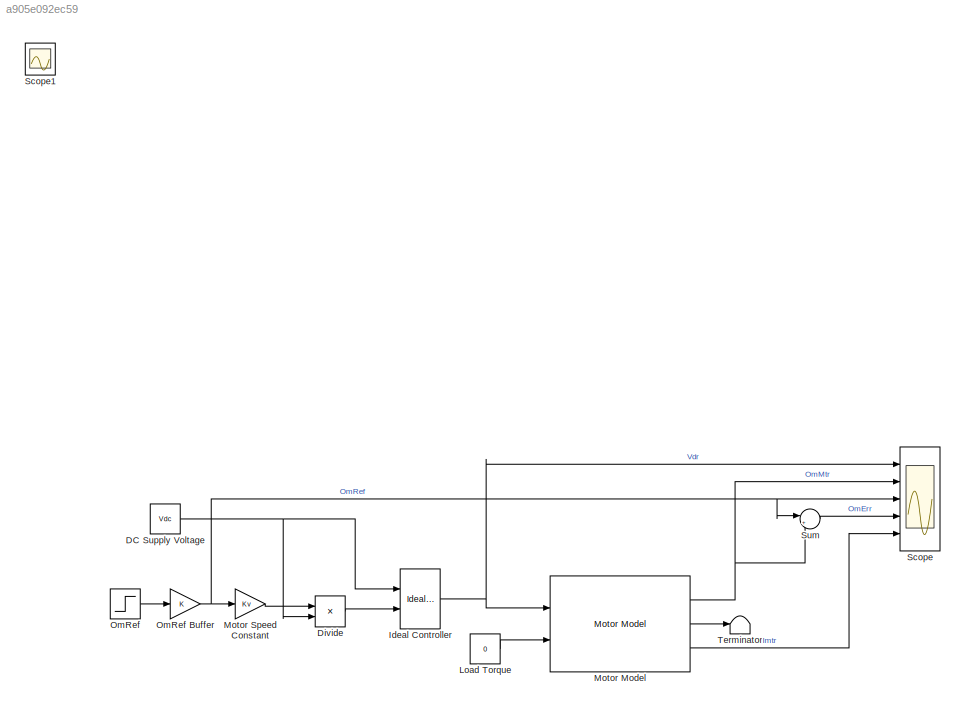
MODEL slx_a905e092ec59
KIND model
CONFIG AbsTol = auto
CONFIG FixedStep = auto
CONFIG MaxStep = auto
CONFIG MinStep = auto
CONFIG RelTol = 1e-3
CONFIG SampleTimeConstraint = Unconstrained
CONFIG Solver = VariableStepAuto
CONFIG SolverMode = Auto
CONFIG SolverName = VariableStepAuto
CONFIG StartTime = 0.0
CONFIG StopTime = 1
BLOCK [Constant] DC Supply Voltage
  Value = Vdc
BLOCK [Product] Divide
  InputSameDT = off
  Inputs = */
  OutDataTypeStr = Inherit: Inherit via internal rule
  Ports = [2, 1]
  RndMeth = Floor
  SaturateOnIntegerOverflow = off
BLOCK [Reference] Ideal Controller  REF=LocalLib/Ideal Controller
  Ports = [2, 1]
  SourceBlock = LocalLib/Ideal Controller
  SourceType = SubSystem
BLOCK [Constant] Load Torque
  Value = 0
BLOCK [Reference] Motor Model  REF=LocalLib/Motor Model
  Ports = [2, 3]
  SourceBlock = LocalLib/Motor Model
  SourceType = SubSystem
BLOCK [Gain] Motor Speed Constant
  Gain = Kv
  OutDataTypeStr = Inherit: Inherit via internal rule
  ParamDataTypeStr = Inherit: Inherit via internal rule
  SaturateOnIntegerOverflow = off
BLOCK [Step] OmRef
  After = 20000*2*pi/60
  SampleTime = 0
  Time = 0.01
BLOCK [Gain] OmRef Buffer
  OutDataTypeStr = Inherit: Inherit via internal rule
  ParamDataTypeStr = Inherit: Inherit via internal rule
  SaturateOnIntegerOverflow = off
BLOCK [Scope] Scope
  NumInputPorts = 5
  Ports = [5]
  ScopeSpecificationString = Simulink.scopes.TimeScopeBlockCfg('CurrentConfiguration', extmgr.ConfigurationSet(extmgr.Configuration('Core','General UI',true),extmgr.Configuration('Core','Source UI',true),extmgr.Configuration('Sources','WiredSimulink',true),extmgr.Configuration('Visuals','Time Domain',true,'SerializedDisplays',{struct('MinYLimReal','-0.98276','MaxYLimReal','8.84481','YLabelReal','','MinYLimMag','0.00000','MaxY...<+6117ch>
BLOCK [Scope] Scope1
  IOType = viewer
  Ports = []
  ScopeSpecificationString = Simulink.scopes.TimeScopeBlockCfg('CurrentConfiguration', extmgr.ConfigurationSet(extmgr.Configuration('Core','General UI',true),extmgr.Configuration('Core','Source UI',true),extmgr.Configuration('Sources','WiredSimulink',true,'DataLoggingVariableName','ScopeData1'),extmgr.Configuration('Visuals','Time Domain',true,'SerializedDisplays',{struct('MinYLimReal','-1.25','MaxYLimReal','11.25','YLabelRea...<+3445ch>
BLOCK [Sum] Sum
  IconShape = round
  InputSameDT = off
  Inputs = |+-
  OutDataTypeStr = Inherit: Inherit via internal rule
  Ports = [2, 1]
  SaturateOnIntegerOverflow = off
BLOCK [Terminator] Terminator
NET DC Supply Voltage:1 -> Divide:2, Ideal Controller:1
LINE Divide:1 -> Ideal Controller:2
NET Ideal Controller:1 -> Motor Model:1, Scope:1
LINE Load Torque:1 -> Motor Model:2
NET Motor Model:1 -> Scope:2, Sum:2
LINE Motor Model:2 -> Terminator:1
LINE Motor Model:3 -> Scope:5
LINE Motor Speed Constant:1 -> Divide:1
NET OmRef Buffer:1 -> Motor Speed Constant:1, Scope:3, Sum:1
LINE OmRef:1 -> OmRef Buffer:1
LINE Sum:1 -> Scope:4
note: NET lines group one-source signal fan-out (src -> all destinations, sorted); 1:1 wires keep LINE
